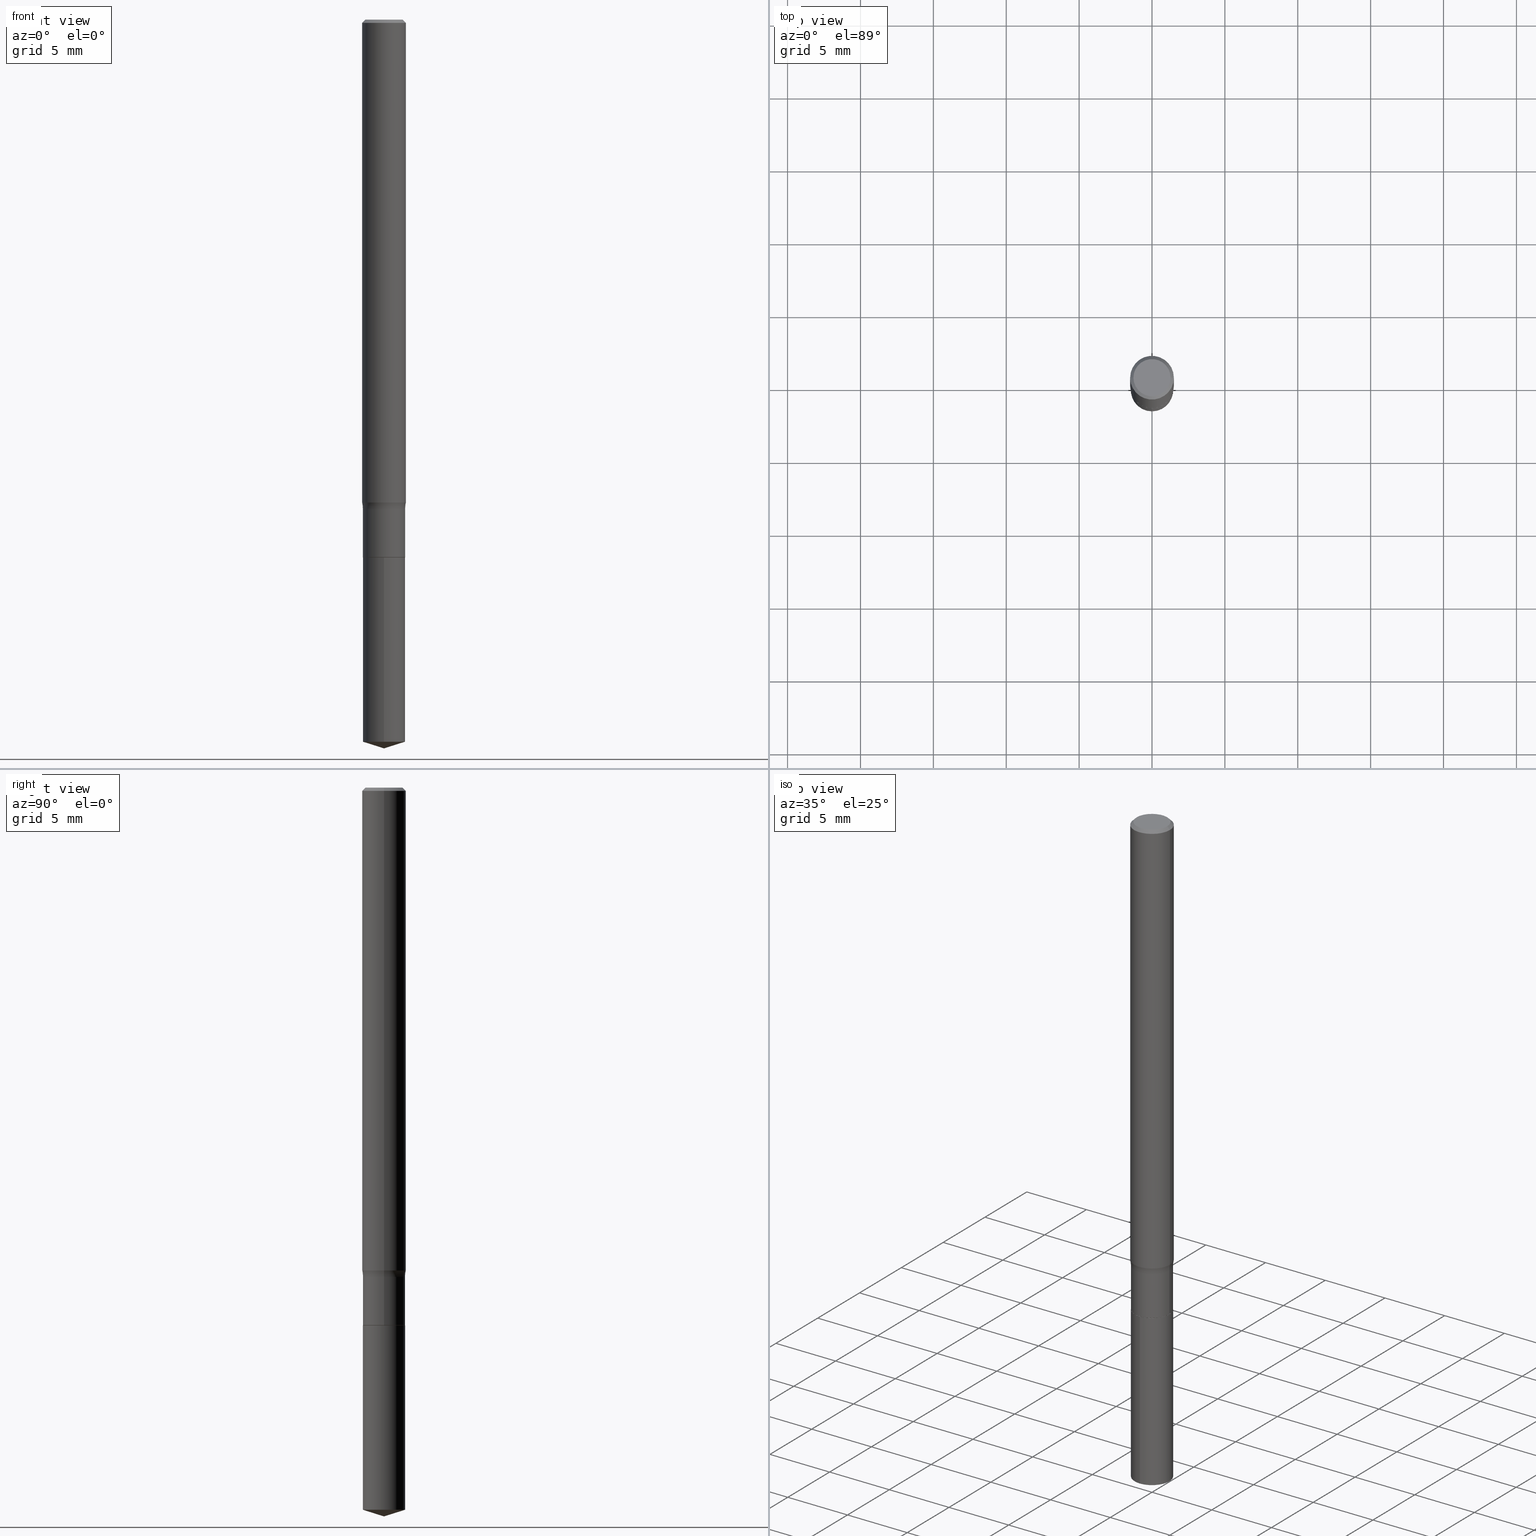
[diagram: canonical four-view strip — front | top / right | iso, engineering-drawing reading convention]
A machine part, canonical four-view strip (front | top / right | iso — engineering-drawing reading convention). The complete STEP part file that produces these views, byte-faithful:
ISO-10303-21;
HEADER;
FILE_DESCRIPTION (( 'STEP AP203' ),
    '1' );
FILE_NAME ('64512.STEP',
    '2024-04-19T15:42:57',
    ( '' ),
    ( '' ),
    'SwSTEP 2.0',
    'SolidWorks 2023',
    '' );
FILE_SCHEMA (( 'CONFIG_CONTROL_DESIGN' ));
ENDSEC;

DATA;
#1 = DIRECTION ( 'NONE',  ( 1.000000000000000000, -6.982962677686268288E-15, 4.883557194083113462E-29 ) ) ;
#2 = VERTEX_POINT ( 'NONE', #347 ) ;
#3 = DIRECTION ( 'NONE',  ( 2.445468806185136597E-29, -3.491481338843145583E-15, -1.000000000000000000 ) ) ;
#4 = UNCERTAINTY_MEASURE_WITH_UNIT (LENGTH_MEASURE( 1.000000000000000082E-05 ), #59, 'distance_accuracy_value', 'NONE');
#5 = PERSON_AND_ORGANIZATION_ROLE ( 'creator' ) ;
#6 = CARTESIAN_POINT ( 'NONE',  ( -0.1350999999999999701, -3.654049353269322401E-15, -1.321500000000000119 ) ) ;
#7 = DIRECTION ( 'NONE',  ( -2.445489378185241171E-29, 3.491451878568109799E-15, 1.000000000000000000 ) ) ;
#8 = ADVANCED_FACE ( 'NONE', ( #63 ), #428, .F. ) ;
#9 = PRODUCT ( '64512', '64512', '', ( #187 ) ) ;
#10 = FACE_OUTER_BOUND ( 'NONE', #116, .T. ) ;
#11 = DIRECTION ( 'NONE',  ( 2.438088387897960049E-29, -3.491481338843145188E-15, -1.000000000000000000 ) ) ;
#12 = FACE_OUTER_BOUND ( 'NONE', #307, .T. ) ;
#13 = CARTESIAN_POINT ( 'NONE',  ( 3.189302213101490858E-29, -4.553478307640284611E-15, -1.304168020886234070 ) ) ;
#14 = COORDINATED_UNIVERSAL_TIME_OFFSET ( 5, 0, .BEHIND. ) ;
#15 = AXIS2_PLACEMENT_3D ( 'NONE', #25, #80, #200 ) ;
#16 = AXIS2_PLACEMENT_3D ( 'NONE', #189, #236, #239 ) ;
#17 = CARTESIAN_POINT ( 'NONE',  ( 3.231687027373658286E-29, -4.613992589281217737E-15, -1.321500000000000119 ) ) ;
#18 = DIRECTION ( 'NONE',  ( 1.000000000000000000, -6.982962677686262766E-15, 0.000000000000000000 ) ) ;
#19 = ORIENTED_EDGE ( 'NONE', *, *, #426, .T. ) ;
#20 = CARTESIAN_POINT ( 'NONE',  ( -0.05904999999999999832, 3.814181501585706869E-16, -0.008857500000000056301 ) ) ;
#21 = LOCAL_TIME ( 11, 42, 57.00000000000000000, #204 ) ;
#22 = AXIS2_PLACEMENT_3D ( 'NONE', #484, #182, #303 ) ;
#23 = EDGE_LOOP ( 'NONE', ( #186, #487, #274, #45 ) ) ;
#24 = DIRECTION ( 'NONE',  ( -2.445468806185136597E-29, 3.491481338843145583E-15, 1.000000000000000000 ) ) ;
#25 = CARTESIAN_POINT ( 'NONE',  ( 4.769888437139961076E-29, -6.810107256515741243E-15, -1.950496439155010142 ) ) ;
#26 = ORIENTED_EDGE ( 'NONE', *, *, #226, .F. ) ;
#27 =( LENGTH_UNIT ( ) NAMED_UNIT ( * ) SI_UNIT ( $, .METRE. ) );
#28 = FACE_OUTER_BOUND ( 'NONE', #79, .T. ) ;
#29 = AXIS2_PLACEMENT_3D ( 'NONE', #224, #327, #132 ) ;
#30 = VECTOR ( 'NONE', #76, 39.37007874015748143 ) ;
#31 = DIRECTION ( 'NONE',  ( -2.445468806185136597E-29, 3.491481338843145583E-15, 1.000000000000000000 ) ) ;
#32 = DIRECTION ( 'NONE',  ( -2.445489378185241451E-29, 3.491451878568109799E-15, 1.000000000000000000 ) ) ;
#33 = ORIENTED_EDGE ( 'NONE', *, *, #207, .T. ) ;
#34 = EDGE_CURVE ( 'NONE', #490, #153, #95, .T. ) ;
#35 = ORIENTED_EDGE ( 'NONE', *, *, #88, .F. ) ;
#36 = CARTESIAN_POINT ( 'NONE',  ( 0.05659999999999999060, -5.467659776628364536E-15, -1.452799999999999869 ) ) ;
#37 = ORIENTED_EDGE ( 'NONE', *, *, #226, .T. ) ;
#38 = AXIS2_PLACEMENT_3D ( 'NONE', #70, #486, #454 ) ;
#39 = DIRECTION ( 'NONE',  ( 1.000000000000000000, -6.982962677686266711E-15, 4.876176775795936353E-29 ) ) ;
#40 = ORIENTED_EDGE ( 'NONE', *, *, #383, .T. ) ;
#41 = PERSON_AND_ORGANIZATION_ROLE ( 'creator' ) ;
#42 = DIRECTION ( 'NONE',  ( 6.982962677686265922E-15, 1.000000000000000000, -3.491451878568109799E-15 ) ) ;
#43 = EDGE_LOOP ( 'NONE', ( #227, #234, #276 ) ) ;
#44 = PRODUCT_DEFINITION_SHAPE ( 'NONE', 'NONE',  #261 ) ;
#45 = ORIENTED_EDGE ( 'NONE', *, *, #207, .F. ) ;
#46 = APPROVAL_ROLE ( '' ) ;
#47 = CARTESIAN_POINT ( 'NONE',  ( -3.987271688958501652E-16, -0.05710000000000506337, -1.452799999999999647 ) ) ;
#48 = AXIS2_PLACEMENT_3D ( 'NONE', #392, #290, #212 ) ;
#49 = DIRECTION ( 'NONE',  ( -2.445489378185241451E-29, 3.491451878568109799E-15, 1.000000000000000000 ) ) ;
#50 = CONICAL_SURFACE ( 'NONE', #330, 0.05904999999999999832, 0.7853981633974452814 ) ;
#51 = EDGE_CURVE ( 'NONE', #458, #457, #301, .T. ) ;
#52 = DIRECTION ( 'NONE',  ( -2.445468806185136877E-29, 3.491481338843145188E-15, 1.000000000000000000 ) ) ;
#53 = PERSON_AND_ORGANIZATION ( #444, #356 ) ;
#54 = DATE_TIME_ROLE ( 'creation_date' ) ;
#55 = COORDINATED_UNIVERSAL_TIME_OFFSET ( 5, 0, .BEHIND. ) ;
#56 = CARTESIAN_POINT ( 'NONE',  ( 8.782355238379090331E-48, -1.253887571509286098E-33, -3.591276738499609681E-19 ) ) ;
#57 = FACE_OUTER_BOUND ( 'NONE', #409, .T. ) ;
#58 = ADVANCED_FACE ( 'NONE', ( #390 ), #465, .F. ) ;
#59 =( CONVERSION_BASED_UNIT ( 'INCH', #298 ) LENGTH_UNIT ( ) NAMED_UNIT ( #65 ) );
#60 = DIRECTION ( 'NONE',  ( 0.7071067811865453523, -7.319954787623248157E-15, -0.7071067811865496822 ) ) ;
#61 = VECTOR ( 'NONE', #52, 39.37007874015748143 ) ;
#62 = ADVANCED_BREP_SHAPE_REPRESENTATION ( '64512', ( #482, #151, #473 ), #155 ) ;
#63 = FACE_OUTER_BOUND ( 'NONE', #483, .T. ) ;
#64 = PLANE ( 'NONE',  #185 ) ;
#65 = DIMENSIONAL_EXPONENTS ( 1.000000000000000000, 0.000000000000000000, 0.000000000000000000, 0.000000000000000000, 0.000000000000000000, 0.000000000000000000, 0.000000000000000000 ) ;
#66 = VERTEX_POINT ( 'NONE', #321 ) ;
#67 = DIRECTION ( 'NONE',  ( -2.438088387897960049E-29, 3.491481338843145188E-15, 1.000000000000000000 ) ) ;
#68 = VECTOR ( 'NONE', #172, 39.37007874015748143 ) ;
#69 = ORIENTED_EDGE ( 'NONE', *, *, #121, .T. ) ;
#70 = CARTESIAN_POINT ( 'NONE',  ( -9.146519342341580758E-28, 1.305857695538483617E-13, 37.40157874015748263 ) ) ;
#71 = VERTEX_POINT ( 'NONE', #385 ) ;
#72 = VERTEX_POINT ( 'NONE', #247 ) ;
#73 = CARTESIAN_POINT ( 'NONE',  ( 3.551554347222674167E-29, -5.070678348401900425E-15, -1.452299999999999924 ) ) ;
#74 = ORIENTED_EDGE ( 'NONE', *, *, #131, .F. ) ;
#75 = ORIENTED_EDGE ( 'NONE', *, *, #51, .F. ) ;
#76 = DIRECTION ( 'NONE',  ( 0.7071067811866138531, -2.468850131082952047E-15, 0.7071067811864811814 ) ) ;
#77 = CARTESIAN_POINT ( 'NONE',  ( 0.05905000000000014404, -4.965822253757659531E-15, -1.304168020886234070 ) ) ;
#78 = AXIS2_PLACEMENT_3D ( 'NONE', #376, #374, #312 ) ;
#79 = EDGE_LOOP ( 'NONE', ( #348, #341 ) ) ;
#80 = DIRECTION ( 'NONE',  ( -2.445489378185241451E-29, 3.491451878568109799E-15, 1.000000000000000000 ) ) ;
#81 = EDGE_CURVE ( 'NONE', #490, #334, #388, .T. ) ;
#82 = CARTESIAN_POINT ( 'NONE',  ( 3.231687027373658286E-29, -4.613992589281217737E-15, -1.321500000000000119 ) ) ;
#83 = ORIENTED_EDGE ( 'NONE', *, *, #223, .F. ) ;
#84 = DATE_AND_TIME ( #322, #228 ) ;
#85 = DIRECTION ( 'NONE',  ( 1.000000000000000000, -6.982962677686268288E-15, 4.883557194083113462E-29 ) ) ;
#86 = AXIS2_PLACEMENT_3D ( 'NONE', #319, #459, #42 ) ;
#87 = AXIS2_PLACEMENT_3D ( 'NONE', #109, #382, #39 ) ;
#88 = EDGE_CURVE ( 'NONE', #334, #108, #183, .T. ) ;
#89 = CARTESIAN_POINT ( 'NONE',  ( 0.05905000000000007465, -4.123439461173745750E-16, 2.879382386107504074E-30 ) ) ;
#90 = CALENDAR_DATE ( 2024, 19, 4 ) ;
#91 = ADVANCED_FACE ( 'NONE', ( #365 ), #50, .T. ) ;
#92 = SHAPE_DEFINITION_REPRESENTATION ( #44, #62 ) ;
#93 = APPROVAL_DATE_TIME ( #391, #104 ) ;
#94 = LINE ( 'NONE', #214, #156 ) ;
#95 = CIRCLE ( 'NONE', #15, 0.05709999999999999798 ) ;
#96 = CIRCLE ( 'NONE', #78, 0.05709999999999999798 ) ;
#97 = DIRECTION ( 'NONE',  ( -6.982962677686265133E-15, -1.000000000000000000, 4.784322230585399479E-15 ) ) ;
#98 = CC_DESIGN_APPROVAL ( #216, ( #231 ) ) ;
#99 = CARTESIAN_POINT ( 'NONE',  ( 3.189302213101490858E-29, -4.553478307640284611E-15, -1.304168020886234070 ) ) ;
#100 = LINE ( 'NONE', #262, #128 ) ;
#101 = ORIENTED_EDGE ( 'NONE', *, *, #160, .F. ) ;
#102 = CIRCLE ( 'NONE', #257, 0.05659999999999999060 ) ;
#103 = DIRECTION ( 'NONE',  ( -2.445468806185136597E-29, 3.491481338843145583E-15, 1.000000000000000000 ) ) ;
#104 = APPROVAL ( #377, 'UNSPECIFIED' ) ;
#105 = ORIENTED_EDGE ( 'NONE', *, *, #325, .F. ) ;
#106 = FACE_OUTER_BOUND ( 'NONE', #135, .T. ) ;
#107 = SECURITY_CLASSIFICATION_LEVEL ( 'unclassified' ) ;
#108 = VERTEX_POINT ( 'NONE', #258 ) ;
#109 = CARTESIAN_POINT ( 'NONE',  ( 0.000000000000000000, 0.000000000000000000, 0.000000000000000000 ) ) ;
#110 = CC_DESIGN_SECURITY_CLASSIFICATION ( #147, ( #231 ) ) ;
#111 = AXIS2_PLACEMENT_3D ( 'NONE', #430, #24, #218 ) ;
#112 = AXIS2_PLACEMENT_3D ( 'NONE', #82, #254, #1 ) ;
#113 = EDGE_LOOP ( 'NONE', ( #171, #442, #396, #485 ) ) ;
#114 = CARTESIAN_POINT ( 'NONE',  ( 3.231687027373658286E-29, -4.613992589281217737E-15, -1.321500000000000119 ) ) ;
#115 = CARTESIAN_POINT ( 'NONE',  ( 4.813886066954143209E-29, -6.873008622736468831E-15, -1.968500000000000139 ) ) ;
#116 = EDGE_LOOP ( 'NONE', ( #130, #297 ) ) ;
#117 = CYLINDRICAL_SURFACE ( 'NONE', #311, 0.05709999999999999798 ) ;
#118 = VECTOR ( 'NONE', #7, 39.37007874015748143 ) ;
#119 = CIRCLE ( 'NONE', #111, 0.05904999999999999832 ) ;
#120 = APPROVAL ( #125, 'UNSPECIFIED' ) ;
#121 = EDGE_CURVE ( 'NONE', #283, #72, #102, .T. ) ;
#122 = DIRECTION ( 'NONE',  ( 7.105427357601001859E-15, 1.000000000000000000, -3.491481338843145583E-15 ) ) ;
#123 = EDGE_CURVE ( 'NONE', #386, #66, #395, .T. ) ;
#124 = VECTOR ( 'NONE', #225, 39.37007874015748143 ) ;
#125 = APPROVAL_STATUS ( 'not_yet_approved' ) ;
#126 =( NAMED_UNIT ( * ) SI_UNIT ( $, .STERADIAN. ) SOLID_ANGLE_UNIT ( ) );
#127 = PRODUCT_RELATED_PRODUCT_CATEGORY ( 'detail', '', ( #9 ) ) ;
#128 = VECTOR ( 'NONE', #60, 39.37007874015748143 ) ;
#129 = APPROVAL_PERSON_ORGANIZATION ( #270, #104, #46 ) ;
#130 = ORIENTED_EDGE ( 'NONE', *, *, #88, .T. ) ;
#131 = EDGE_CURVE ( 'NONE', #66, #2, #193, .T. ) ;
#132 = DIRECTION ( 'NONE',  ( 1.000000000000000000, -6.982962677686266711E-15, 4.876176775795936353E-29 ) ) ;
#133 = EDGE_CURVE ( 'NONE', #71, #415, #478, .T. ) ;
#134 = DIRECTION ( 'NONE',  ( -2.445489378185241451E-29, 3.491451878568109799E-15, 1.000000000000000000 ) ) ;
#135 = EDGE_LOOP ( 'NONE', ( #217, #373, #279, #292 ) ) ;
#136 = CC_DESIGN_DATE_AND_TIME_ASSIGNMENT ( #84, #54, ( #261 ) ) ;
#137 = CARTESIAN_POINT ( 'NONE',  ( 4.057199021190526412E-16, 0.05709999999999492565, -1.452800000000000091 ) ) ;
#138 = CIRCLE ( 'NONE', #288, 0.05709999999999998410 ) ;
#139 = CC_DESIGN_DATE_AND_TIME_ASSIGNMENT ( #170, #402, ( #147 ) ) ;
#140 = ORIENTED_EDGE ( 'NONE', *, *, #466, .F. ) ;
#141 = DIRECTION ( 'NONE',  ( -2.445468806185136597E-29, 3.491481338843145583E-15, 1.000000000000000000 ) ) ;
#142 = ORIENTED_EDGE ( 'NONE', *, *, #335, .T. ) ;
#143 = APPLICATION_PROTOCOL_DEFINITION ( 'international standard', 'config_control_design', 1994, #237 ) ;
#144 = DIRECTION ( 'NONE',  ( 1.000000000000000000, -6.982962677686265922E-15, 4.876176775795935793E-29 ) ) ;
#145 = ORIENTED_EDGE ( 'NONE', *, *, #34, .T. ) ;
#146 = CYLINDRICAL_SURFACE ( 'NONE', #472, 0.05709999999999999798 ) ;
#147 = SECURITY_CLASSIFICATION ( '', '', #107 ) ;
#148 = ORIENTED_EDGE ( 'NONE', *, *, #309, .F. ) ;
#149 = CYLINDRICAL_SURFACE ( 'NONE', #87, 0.05905000000000007465 ) ;
#150 = ORIENTED_EDGE ( 'NONE', *, *, #259, .F. ) ;
#151 = MANIFOLD_SOLID_BREP ( 'Body-Move/Copy2[2]', #240 ) ;
#152 = DIRECTION ( 'NONE',  ( 1.000000000000000000, -6.982962677686269077E-15, 0.000000000000000000 ) ) ;
#153 = VERTEX_POINT ( 'NONE', #222 ) ;
#154 = FACE_OUTER_BOUND ( 'NONE', #243, .T. ) ;
#155 =( GEOMETRIC_REPRESENTATION_CONTEXT ( 3 ) GLOBAL_UNCERTAINTY_ASSIGNED_CONTEXT ( ( #4 ) ) GLOBAL_UNIT_ASSIGNED_CONTEXT ( ( #59, #468, #126 ) ) REPRESENTATION_CONTEXT ( 'NONE', 'WORKASPACE' ) );
#156 = VECTOR ( 'NONE', #326, 39.37007874015748854 ) ;
#157 = CARTESIAN_POINT ( 'NONE',  ( -0.05905000000000014404, -4.133902822173944329E-15, -1.304168020886234070 ) ) ;
#158 = ORIENTED_EDGE ( 'NONE', *, *, #168, .T. ) ;
#159 = PLANE ( 'NONE',  #86 ) ;
#160 = EDGE_CURVE ( 'NONE', #71, #173, #213, .T. ) ;
#161 = DIRECTION ( 'NONE',  ( 1.000000000000000000, -6.982962677686266711E-15, 4.876140833081945105E-29 ) ) ;
#162 = APPROVAL_STATUS ( 'not_yet_approved' ) ;
#163 = CYLINDRICAL_SURFACE ( 'NONE', #48, 0.05709999999999997716 ) ;
#164 = CALENDAR_DATE ( 2024, 19, 4 ) ;
#165 = CONICAL_SURFACE ( 'NONE', #368, 0.05659999999999999060, 0.7853981633975420928 ) ;
#166 = ORIENTED_EDGE ( 'NONE', *, *, #464, .F. ) ;
#167 = EDGE_LOOP ( 'NONE', ( #199, #37, #352, #190 ) ) ;
#168 = EDGE_CURVE ( 'NONE', #457, #415, #328, .T. ) ;
#169 = CARTESIAN_POINT ( 'NONE',  ( 0.05019250000000000100, -3.901918742401799179E-16, -3.591276738473711219E-19 ) ) ;
#170 = DATE_AND_TIME ( #215, #192 ) ;
#171 = ORIENTED_EDGE ( 'NONE', *, *, #440, .F. ) ;
#172 = DIRECTION ( 'NONE',  ( -2.445468806185136877E-29, 3.491481338843145188E-15, 1.000000000000000000 ) ) ;
#173 = VERTEX_POINT ( 'NONE', #169 ) ;
#174 = AXIS2_PLACEMENT_3D ( 'NONE', #99, #260, #401 ) ;
#175 = DIRECTION ( 'NONE',  ( 2.445468806185136597E-29, -3.491481338843145583E-15, -1.000000000000000000 ) ) ;
#176 = ORIENTED_EDGE ( 'NONE', *, *, #241, .T. ) ;
#177 = FACE_OUTER_BOUND ( 'NONE', #113, .T. ) ;
#178 = APPLICATION_CONTEXT ( 'configuration controlled 3d designs of mechanical parts and assemblies' ) ;
#179 = ADVANCED_FACE ( 'NONE', ( #57 ), #355, .T. ) ;
#180 = CARTESIAN_POINT ( 'NONE',  ( 3.552777081625765848E-29, -5.072424089071321929E-15, -1.452799999999999869 ) ) ;
#181 = CARTESIAN_POINT ( 'NONE',  ( 3.231687027373658286E-29, -4.613992589281217737E-15, -1.321500000000000119 ) ) ;
#182 = DIRECTION ( 'NONE',  ( -6.982962677686266711E-15, -1.000000000000000000, 3.491481338843145583E-15 ) ) ;
#183 = CIRCLE ( 'NONE', #317, 0.05709999999999999798 ) ;
#184 = VECTOR ( 'NONE', #336, 39.37007874015748143 ) ;
#185 = AXIS2_PLACEMENT_3D ( 'NONE', #445, #67, #144 ) ;
#186 = ORIENTED_EDGE ( 'NONE', *, *, #168, .F. ) ;
#187 = MECHANICAL_CONTEXT ( 'NONE', #178, 'mechanical' ) ;
#188 = CARTESIAN_POINT ( 'NONE',  ( -3.987271688958501652E-16, -0.05710000000000506337, -1.452799999999999647 ) ) ;
#189 = CARTESIAN_POINT ( 'NONE',  ( 2.166073995078498372E-31, -3.092579595880335814E-17, -0.008857500000000056301 ) ) ;
#190 = ORIENTED_EDGE ( 'NONE', *, *, #133, .F. ) ;
#191 = DIRECTION ( 'NONE',  ( -0.7071067811866138531, 7.493145998870593974E-15, 0.7071067811864811814 ) ) ;
#192 = LOCAL_TIME ( 11, 42, 57.00000000000000000, #55 ) ;
#193 = CIRCLE ( 'NONE', #362, 0.05709999999999997022 ) ;
#194 = ADVANCED_FACE ( 'NONE', ( #439 ), #165, .T. ) ;
#195 = ORIENTED_EDGE ( 'NONE', *, *, #325, .T. ) ;
#196 = CARTESIAN_POINT ( 'NONE',  ( 4.769888437139961076E-29, -6.810107256515741243E-15, -1.950496439155010142 ) ) ;
#197 = FACE_OUTER_BOUND ( 'NONE', #281, .T. ) ;
#198 = DIRECTION ( 'NONE',  ( -1.000000000000000000, 6.982962677686266711E-15, 0.000000000000000000 ) ) ;
#199 = ORIENTED_EDGE ( 'NONE', *, *, #426, .F. ) ;
#200 = DIRECTION ( 'NONE',  ( -6.982962677686265133E-15, -1.000000000000000000, 4.784322230585399479E-15 ) ) ;
#201 = VECTOR ( 'NONE', #357, 39.37007874015748143 ) ;
#202 = AXIS2_PLACEMENT_3D ( 'NONE', #114, #233, #340 ) ;
#203 = LOCAL_TIME ( 11, 42, 57.00000000000000000, #289 ) ;
#204 = COORDINATED_UNIVERSAL_TIME_OFFSET ( 5, 0, .BEHIND. ) ;
#205 = CARTESIAN_POINT ( 'NONE',  ( 3.552777081625765848E-29, -5.072424089071321929E-15, -1.452799999999999869 ) ) ;
#206 = DIRECTION ( 'NONE',  ( -2.445468806185136597E-29, 3.491481338843145583E-15, 1.000000000000000000 ) ) ;
#207 = EDGE_CURVE ( 'NONE', #415, #480, #119, .T. ) ;
#208 = COORDINATED_UNIVERSAL_TIME_OFFSET ( 5, 0, .BEHIND. ) ;
#209 = DIRECTION ( 'NONE',  ( -6.982962677686265133E-15, -1.000000000000000000, 4.784322230585399479E-15 ) ) ;
#210 = CARTESIAN_POINT ( 'NONE',  ( 0.05904999999999999832, -4.432697420761773785E-16, -0.008857500000000056301 ) ) ;
#211 = APPROVAL_DATE_TIME ( #315, #216 ) ;
#212 = DIRECTION ( 'NONE',  ( 1.000000000000000000, -6.982962677686266711E-15, 4.876176775795935793E-29 ) ) ;
#213 = CIRCLE ( 'NONE', #375, 0.05019250000000000100 ) ;
#214 = CARTESIAN_POINT ( 'NONE',  ( 4.813946365105101460E-29, -6.872923022961324589E-15, -1.968500000000000139 ) ) ;
#215 = CALENDAR_DATE ( 2024, 19, 4 ) ;
#216 = APPROVAL ( #162, 'UNSPECIFIED' ) ;
#217 = ORIENTED_EDGE ( 'NONE', *, *, #255, .F. ) ;
#218 = DIRECTION ( 'NONE',  ( 1.000000000000000000, -6.982962677686266711E-15, 0.000000000000000000 ) ) ;
#219 = DIRECTION ( 'NONE',  ( -1.000000000000000000, 6.982962677686266711E-15, 0.000000000000000000 ) ) ;
#220 = EDGE_CURVE ( 'NONE', #268, #153, #94, .T. ) ;
#221 = CIRCLE ( 'NONE', #491, 0.05709999999999998410 ) ;
#222 = CARTESIAN_POINT ( 'NONE',  ( 4.057199021190646713E-16, 0.05709999999999316317, -1.950496439155010586 ) ) ;
#223 = EDGE_CURVE ( 'NONE', #457, #458, #242, .T. ) ;
#224 = CARTESIAN_POINT ( 'NONE',  ( 0.000000000000000000, 0.000000000000000000, 0.000000000000000000 ) ) ;
#225 = DIRECTION ( 'NONE',  ( -2.445489378185241171E-29, 3.491451878568109799E-15, 1.000000000000000000 ) ) ;
#226 = EDGE_CURVE ( 'NONE', #173, #480, #100, .T. ) ;
#227 = ORIENTED_EDGE ( 'NONE', *, *, #241, .F. ) ;
#228 = LOCAL_TIME ( 11, 42, 57.00000000000000000, #208 ) ;
#229 = CARTESIAN_POINT ( 'NONE',  ( -0.05709999999999998410, -4.436615566722541594E-15, -1.452299999999999924 ) ) ;
#230 = CIRCLE ( 'NONE', #22, 0.07799999999999999989 ) ;
#231 = PRODUCT_DEFINITION_FORMATION_WITH_SPECIFIED_SOURCE ( 'ANY', '', #9, .NOT_KNOWN. ) ;
#232 = CC_DESIGN_PERSON_AND_ORGANIZATION_ASSIGNMENT ( #387, #447, ( #231 ) ) ;
#233 = DIRECTION ( 'NONE',  ( -2.445468806185136597E-29, 3.491481338843145583E-15, 1.000000000000000000 ) ) ;
#234 = ORIENTED_EDGE ( 'NONE', *, *, #220, .T. ) ;
#235 = ADVANCED_FACE ( 'NONE', ( #177 ), #308, .T. ) ;
#236 = DIRECTION ( 'NONE',  ( -2.445468806185136597E-29, 3.491481338843145583E-15, 1.000000000000000000 ) ) ;
#237 = APPLICATION_CONTEXT ( 'configuration controlled 3d designs of mechanical parts and assemblies' ) ;
#238 = ORIENTED_EDGE ( 'NONE', *, *, #345, .T. ) ;
#239 = DIRECTION ( 'NONE',  ( 1.000000000000000000, -6.982962677686266711E-15, 0.000000000000000000 ) ) ;
#240 = CLOSED_SHELL ( 'NONE', ( #437, #91, #489, #424, #399, #235, #8, #267, #452, #58, #372, #194 ) ) ;
#241 = EDGE_CURVE ( 'NONE', #268, #490, #346, .T. ) ;
#242 = CIRCLE ( 'NONE', #174, 0.05905000000000015098 ) ;
#243 = EDGE_LOOP ( 'NONE', ( #83, #379, #40, #148 ) ) ;
#244 = DIRECTION ( 'NONE',  ( -1.000000000000000000, 6.982962677686265922E-15, -4.876176775795935793E-29 ) ) ;
#245 = PERSON_AND_ORGANIZATION ( #444, #356 ) ;
#246 = CARTESIAN_POINT ( 'NONE',  ( 8.782355238379090331E-48, -1.253887571509286098E-33, -3.591276738499609681E-19 ) ) ;
#247 = CARTESIAN_POINT ( 'NONE',  ( -0.05659999999999999060, -4.667607673456994139E-15, -1.452799999999999869 ) ) ;
#248 = EDGE_CURVE ( 'NONE', #480, #415, #302, .T. ) ;
#249 = FACE_OUTER_BOUND ( 'NONE', #265, .T. ) ;
#250 = DIRECTION ( 'NONE',  ( 1.000000000000000000, -6.982962677686271444E-15, 0.000000000000000000 ) ) ;
#251 = CC_DESIGN_PERSON_AND_ORGANIZATION_ASSIGNMENT ( #467, #369, ( #147 ) ) ;
#252 = CALENDAR_DATE ( 2024, 19, 4 ) ;
#253 = CARTESIAN_POINT ( 'NONE',  ( 0.05709999999999998410, -5.469405517297786040E-15, -1.452299999999999924 ) ) ;
#254 = DIRECTION ( 'NONE',  ( -2.445468806185136597E-29, 3.491481338843145583E-15, 1.000000000000000000 ) ) ;
#255 = EDGE_CURVE ( 'NONE', #153, #108, #449, .T. ) ;
#256 = DIRECTION ( 'NONE',  ( -2.445468806185136597E-29, 3.491481338843145583E-15, 1.000000000000000000 ) ) ;
#257 = AXIS2_PLACEMENT_3D ( 'NONE', #371, #370, #431 ) ;
#258 = CARTESIAN_POINT ( 'NONE',  ( 4.057199021190649179E-16, 0.05709999999999492565, -1.452800000000000091 ) ) ;
#259 = EDGE_CURVE ( 'NONE', #153, #490, #432, .T. ) ;
#260 = DIRECTION ( 'NONE',  ( -2.445468806185136597E-29, 3.491481338843145583E-15, 1.000000000000000000 ) ) ;
#261 = PRODUCT_DEFINITION ( 'UNKNOWN', '', #231, #337 ) ;
#262 = CARTESIAN_POINT ( 'NONE',  ( 0.05904999999999999832, -4.360382027272122633E-16, -0.008857500000000056301 ) ) ;
#263 = EDGE_LOOP ( 'NONE', ( #105, #142, #238, #314 ) ) ;
#264 = CARTESIAN_POINT ( 'NONE',  ( -0.05905000000000007465, 4.195754854663396902E-16, -2.904631170795525395E-30 ) ) ;
#265 = EDGE_LOOP ( 'NONE', ( #145, #381, #35, #436 ) ) ;
#266 = DIRECTION ( 'NONE',  ( 1.000000000000000000, -6.982962677686269077E-15, 0.000000000000000000 ) ) ;
#267 = ADVANCED_FACE ( 'NONE', ( #410 ), #149, .T. ) ;
#268 = VERTEX_POINT ( 'NONE', #378 ) ;
#269 = VERTEX_POINT ( 'NONE', #229 ) ;
#270 = PERSON_AND_ORGANIZATION ( #444, #356 ) ;
#271 = DIRECTION ( 'NONE',  ( -2.445468806185136597E-29, 3.491481338843145583E-15, 1.000000000000000000 ) ) ;
#272 = ORIENTED_EDGE ( 'NONE', *, *, #133, .T. ) ;
#273 = AXIS2_PLACEMENT_3D ( 'NONE', #205, #420, #152 ) ;
#274 = ORIENTED_EDGE ( 'NONE', *, *, #466, .T. ) ;
#275 = LINE ( 'NONE', #443, #479 ) ;
#276 = ORIENTED_EDGE ( 'NONE', *, *, #34, .F. ) ;
#277 = PERSON_AND_ORGANIZATION_ROLE ( 'design_owner' ) ;
#278 = CARTESIAN_POINT ( 'NONE',  ( 3.552777081625765848E-29, -5.072424089071321929E-15, -1.452799999999999869 ) ) ;
#279 = ORIENTED_EDGE ( 'NONE', *, *, #81, .T. ) ;
#280 = CIRCLE ( 'NONE', #398, 0.05659999999999999060 ) ;
#281 = EDGE_LOOP ( 'NONE', ( #26, #101, #272, #33 ) ) ;
#282 = EDGE_CURVE ( 'NONE', #108, #334, #96, .T. ) ;
#283 = VERTEX_POINT ( 'NONE', #36 ) ;
#284 = CARTESIAN_POINT ( 'NONE',  ( 3.552777081625765848E-29, -5.072424089071321929E-15, -1.452799999999999869 ) ) ;
#285 = CC_DESIGN_PERSON_AND_ORGANIZATION_ASSIGNMENT ( #245, #41, ( #231 ) ) ;
#286 = DIRECTION ( 'NONE',  ( -1.000000000000000000, 7.105427357600997914E-15, 0.000000000000000000 ) ) ;
#287 = CC_DESIGN_APPROVAL ( #104, ( #261 ) ) ;
#288 = AXIS2_PLACEMENT_3D ( 'NONE', #455, #271, #380 ) ;
#289 = COORDINATED_UNIVERSAL_TIME_OFFSET ( 5, 0, .BEHIND. ) ;
#290 = DIRECTION ( 'NONE',  ( -2.445468806185136597E-29, 3.491481338843145583E-15, 1.000000000000000000 ) ) ;
#291 = DIRECTION ( 'NONE',  ( 1.000000000000000000, -6.982962677686269077E-15, 0.000000000000000000 ) ) ;
#292 = ORIENTED_EDGE ( 'NONE', *, *, #282, .F. ) ;
#293 = ORIENTED_EDGE ( 'NONE', *, *, #309, .T. ) ;
#294 = EDGE_CURVE ( 'NONE', #386, #269, #221, .T. ) ;
#295 = CONICAL_SURFACE ( 'NONE', #413, 0.05904999999999999832, 0.7853981633974452814 ) ;
#296 = DIRECTION ( 'NONE',  ( -0.7071067811865453523, 2.468850131082234184E-15, -0.7071067811865496822 ) ) ;
#297 = ORIENTED_EDGE ( 'NONE', *, *, #282, .T. ) ;
#298 = LENGTH_MEASURE_WITH_UNIT ( LENGTH_MEASURE( 0.02539999999999999897 ), #27 );
#299 = CARTESIAN_POINT ( 'NONE',  ( 2.166073995078498372E-31, -3.092579595880335814E-17, -0.008857500000000056301 ) ) ;
#300 = DIRECTION ( 'NONE',  ( 1.000000000000000000, -6.982962677686266711E-15, 4.876140833081945105E-29 ) ) ;
#301 = CIRCLE ( 'NONE', #421, 0.05905000000000015098 ) ;
#302 = CIRCLE ( 'NONE', #16, 0.05904999999999999832 ) ;
#303 = DIRECTION ( 'NONE',  ( 1.000000000000000000, -6.982962677686270655E-15, 0.000000000000000000 ) ) ;
#304 = ORIENTED_EDGE ( 'NONE', *, *, #294, .F. ) ;
#305 = DIRECTION ( 'NONE',  ( 0.000000000000000000, 0.000000000000000000, 1.000000000000000000 ) ) ;
#306 = LINE ( 'NONE', #417, #30 ) ;
#307 = EDGE_LOOP ( 'NONE', ( #69, #195, #304, #438 ) ) ;
#308 = CYLINDRICAL_SURFACE ( 'NONE', #453, 0.05709999999999997716 ) ;
#309 = EDGE_CURVE ( 'NONE', #458, #66, #230, .T. ) ;
#310 = DIRECTION ( 'NONE',  ( -2.445489378185241451E-29, 3.491451878568109799E-15, 1.000000000000000000 ) ) ;
#311 = AXIS2_PLACEMENT_3D ( 'NONE', #284, #49, #209 ) ;
#312 = DIRECTION ( 'NONE',  ( -6.982962677686265133E-15, -1.000000000000000000, 4.784322230585399479E-15 ) ) ;
#313 = LINE ( 'NONE', #384, #201 ) ;
#314 = ORIENTED_EDGE ( 'NONE', *, *, #316, .F. ) ;
#315 = DATE_AND_TIME ( #90, #203 ) ;
#316 = EDGE_CURVE ( 'NONE', #269, #386, #138, .T. ) ;
#317 = AXIS2_PLACEMENT_3D ( 'NONE', #469, #134, #97 ) ;
#318 = CIRCLE ( 'NONE', #404, 0.05019250000000000100 ) ;
#319 = CARTESIAN_POINT ( 'NONE',  ( 3.552777081625765848E-29, -5.072424089071321929E-15, -1.452799999999999869 ) ) ;
#320 = DIRECTION ( 'NONE',  ( -2.445468806185136597E-29, 3.491481338843145583E-15, 1.000000000000000000 ) ) ;
#321 = CARTESIAN_POINT ( 'NONE',  ( 0.05709999999999997022, -5.012719758177102563E-15, -1.321500000000000119 ) ) ;
#322 = CALENDAR_DATE ( 2024, 19, 4 ) ;
#323 = DIRECTION ( 'NONE',  ( -2.445468806185136597E-29, 3.491481338843145583E-15, 1.000000000000000000 ) ) ;
#324 = DATE_AND_TIME ( #164, #354 ) ;
#325 = EDGE_CURVE ( 'NONE', #72, #269, #275, .T. ) ;
#326 = DIRECTION ( 'NONE',  ( 6.776566513254254982E-15, 0.9537169507482283759, 0.3007057995042682341 ) ) ;
#327 = DIRECTION ( 'NONE',  ( -2.445468806185136597E-29, 3.491481338843145583E-15, 1.000000000000000000 ) ) ;
#328 = LINE ( 'NONE', #264, #68 ) ;
#329 = TOROIDAL_SURFACE ( 'NONE', #112, 0.1350999999999999701, 0.07799999999999999989 ) ;
#330 = AXIS2_PLACEMENT_3D ( 'NONE', #299, #175, #219 ) ;
#331 = CC_DESIGN_APPROVAL ( #120, ( #147 ) ) ;
#332 = DIRECTION ( 'NONE',  ( -2.445489378185241451E-29, 3.491451878568109799E-15, 1.000000000000000000 ) ) ;
#333 = CARTESIAN_POINT ( 'NONE',  ( -9.146519342341580758E-28, 1.305857695538483617E-13, 37.40157874015748263 ) ) ;
#334 = VERTEX_POINT ( 'NONE', #188 ) ;
#335 = EDGE_CURVE ( 'NONE', #72, #283, #280, .T. ) ;
#336 = DIRECTION ( 'NONE',  ( -6.659769872151629722E-15, -0.9537169507482263775, 0.3007057995042748955 ) ) ;
#337 = DESIGN_CONTEXT ( 'detailed design', #237, 'design' ) ;
#338 = EDGE_LOOP ( 'NONE', ( #411, #400, #74, #364 ) ) ;
#339 = PERSON_AND_ORGANIZATION ( #444, #356 ) ;
#340 = DIRECTION ( 'NONE',  ( 1.000000000000000000, -6.982962677686262766E-15, 0.000000000000000000 ) ) ;
#341 = ORIENTED_EDGE ( 'NONE', *, *, #335, .F. ) ;
#342 = ADVANCED_FACE ( 'NONE', ( #492 ), #412, .T. ) ;
#343 = DIRECTION ( 'NONE',  ( 1.000000000000000000, -6.982962677686261189E-15, 0.000000000000000000 ) ) ;
#344 = ORIENTED_EDGE ( 'NONE', *, *, #160, .T. ) ;
#345 = EDGE_CURVE ( 'NONE', #283, #386, #306, .T. ) ;
#346 = LINE ( 'NONE', #115, #184 ) ;
#347 = CARTESIAN_POINT ( 'NONE',  ( -0.05709999999999997022, -4.436615566722541594E-15, -1.321500000000000119 ) ) ;
#348 = ORIENTED_EDGE ( 'NONE', *, *, #121, .F. ) ;
#349 = DIRECTION ( 'NONE',  ( 1.000000000000000000, 0.000000000000000000, 0.000000000000000000 ) ) ;
#350 = CARTESIAN_POINT ( 'NONE',  ( 3.552777081625765848E-29, -5.072424089071321929E-15, -1.452799999999999869 ) ) ;
#351 = CARTESIAN_POINT ( 'NONE',  ( 2.166073995078498372E-31, -3.092579595880335814E-17, -0.008857500000000056301 ) ) ;
#352 = ORIENTED_EDGE ( 'NONE', *, *, #248, .T. ) ;
#353 = CARTESIAN_POINT ( 'NONE',  ( -0.05904999999999999832, -1.872626566333202982E-15, -0.008857500000000056301 ) ) ;
#354 = LOCAL_TIME ( 11, 42, 57.00000000000000000, #14 ) ;
#355 = CONICAL_SURFACE ( 'NONE', #441, 124.8659371009145644, 1.265363707695890572 ) ;
#356 = ORGANIZATION ( 'UNSPECIFIED', 'UNSPECIFIED', '' ) ;
#357 = DIRECTION ( 'NONE',  ( -2.445468806185136877E-29, 3.491481338843145188E-15, 1.000000000000000000 ) ) ;
#358 = ADVANCED_FACE ( 'NONE', ( #106 ), #146, .T. ) ;
#359 = PERSON_AND_ORGANIZATION ( #444, #356 ) ;
#360 = APPROVAL_ROLE ( '' ) ;
#361 = PERSON_AND_ORGANIZATION ( #444, #356 ) ;
#362 = AXIS2_PLACEMENT_3D ( 'NONE', #17, #403, #18 ) ;
#363 = CARTESIAN_POINT ( 'NONE',  ( 0.05709999999999997716, -3.987271688958856639E-16, 2.784296938979478177E-30 ) ) ;
#364 = ORIENTED_EDGE ( 'NONE', *, *, #123, .F. ) ;
#365 = FACE_OUTER_BOUND ( 'NONE', #167, .T. ) ;
#366 = APPROVAL_PERSON_ORGANIZATION ( #359, #216, #460 ) ;
#367 = CLOSED_SHELL ( 'NONE', ( #389, #342, #179, #358, #446 ) ) ;
#368 = AXIS2_PLACEMENT_3D ( 'NONE', #180, #406, #291 ) ;
#369 = PERSON_AND_ORGANIZATION_ROLE ( 'classification_officer' ) ;
#370 = DIRECTION ( 'NONE',  ( -2.445468806185136597E-29, 3.491481338843145583E-15, 1.000000000000000000 ) ) ;
#371 = CARTESIAN_POINT ( 'NONE',  ( 3.552777081625765848E-29, -5.072424089071321929E-15, -1.452799999999999869 ) ) ;
#372 = ADVANCED_FACE ( 'NONE', ( #28 ), #64, .F. ) ;
#373 = ORIENTED_EDGE ( 'NONE', *, *, #259, .T. ) ;
#374 = DIRECTION ( 'NONE',  ( -2.445489378185241451E-29, 3.491451878568109799E-15, 1.000000000000000000 ) ) ;
#375 = AXIS2_PLACEMENT_3D ( 'NONE', #56, #256, #300 ) ;
#376 = CARTESIAN_POINT ( 'NONE',  ( 3.552777081625765848E-29, -5.072424089071321929E-15, -1.452799999999999869 ) ) ;
#377 = APPROVAL_STATUS ( 'not_yet_approved' ) ;
#378 = CARTESIAN_POINT ( 'NONE',  ( 4.813945840957648273E-29, -6.872923022961324589E-15, -1.968500000000000139 ) ) ;
#379 = ORIENTED_EDGE ( 'NONE', *, *, #464, .T. ) ;
#380 = DIRECTION ( 'NONE',  ( 1.000000000000000000, -6.982962677686261189E-15, 0.000000000000000000 ) ) ;
#381 = ORIENTED_EDGE ( 'NONE', *, *, #255, .T. ) ;
#382 = DIRECTION ( 'NONE',  ( -2.445468806185136597E-29, 3.491481338843145583E-15, 1.000000000000000000 ) ) ;
#383 = EDGE_CURVE ( 'NONE', #2, #66, #462, .T. ) ;
#384 = CARTESIAN_POINT ( 'NONE',  ( -0.05709999999999997716, 4.057199021190170439E-16, -2.808711936535549889E-30 ) ) ;
#385 = CARTESIAN_POINT ( 'NONE',  ( -0.05019250000000000100, 3.659552521791693345E-16, -3.591276738524661214E-19 ) ) ;
#386 = VERTEX_POINT ( 'NONE', #253 ) ;
#387 = PERSON_AND_ORGANIZATION ( #444, #356 ) ;
#388 = LINE ( 'NONE', #47, #118 ) ;
#389 = ADVANCED_FACE ( 'NONE', ( #249 ), #117, .T. ) ;
#390 = FACE_OUTER_BOUND ( 'NONE', #456, .T. ) ;
#391 = DATE_AND_TIME ( #252, #21 ) ;
#392 = CARTESIAN_POINT ( 'NONE',  ( 0.000000000000000000, 0.000000000000000000, 0.000000000000000000 ) ) ;
#393 = CC_DESIGN_PERSON_AND_ORGANIZATION_ASSIGNMENT ( #339, #277, ( #9 ) ) ;
#394 = ORIENTED_EDGE ( 'NONE', *, *, #131, .T. ) ;
#395 = LINE ( 'NONE', #363, #429 ) ;
#396 = ORIENTED_EDGE ( 'NONE', *, *, #123, .T. ) ;
#397 = AXIS2_PLACEMENT_3D ( 'NONE', #423, #11, #244 ) ;
#398 = AXIS2_PLACEMENT_3D ( 'NONE', #278, #141, #266 ) ;
#399 = ADVANCED_FACE ( 'NONE', ( #425 ), #163, .T. ) ;
#400 = ORIENTED_EDGE ( 'NONE', *, *, #440, .T. ) ;
#401 = DIRECTION ( 'NONE',  ( 1.000000000000000000, -6.982962677686271444E-15, 0.000000000000000000 ) ) ;
#402 = DATE_TIME_ROLE ( 'classification_date' ) ;
#403 = DIRECTION ( 'NONE',  ( -2.445468806185136597E-29, 3.491481338843145583E-15, 1.000000000000000000 ) ) ;
#404 = AXIS2_PLACEMENT_3D ( 'NONE', #246, #320, #161 ) ;
#405 = AXIS2_PLACEMENT_3D ( 'NONE', #196, #32, #481 ) ;
#406 = DIRECTION ( 'NONE',  ( -2.445468806185136597E-29, 3.491481338843145583E-15, 1.000000000000000000 ) ) ;
#407 = FACE_OUTER_BOUND ( 'NONE', #471, .T. ) ;
#408 = DIRECTION ( 'NONE',  ( -6.982962677686265133E-15, -1.000000000000000000, 4.784322230585399479E-15 ) ) ;
#409 = EDGE_LOOP ( 'NONE', ( #450, #176, #150 ) ) ;
#410 = FACE_OUTER_BOUND ( 'NONE', #23, .T. ) ;
#411 = ORIENTED_EDGE ( 'NONE', *, *, #294, .T. ) ;
#412 = CONICAL_SURFACE ( 'NONE', #38, 124.8659371009145644, 1.265363707695890572 ) ;
#413 = AXIS2_PLACEMENT_3D ( 'NONE', #351, #3, #198 ) ;
#414 = DIRECTION ( 'NONE',  ( 1.000000000000000000, -6.982962677686266711E-15, 4.876176775795935793E-29 ) ) ;
#415 = VERTEX_POINT ( 'NONE', #353 ) ;
#416 = CARTESIAN_POINT ( 'NONE',  ( 0.000000000000000000, 0.000000000000000000, 0.000000000000000000 ) ) ;
#417 = CARTESIAN_POINT ( 'NONE',  ( 0.05659999999999999060, -5.467659776628364536E-15, -1.452799999999999869 ) ) ;
#418 = ORIENTED_EDGE ( 'NONE', *, *, #248, .F. ) ;
#419 = CARTESIAN_POINT ( 'NONE',  ( 0.000000000000000000, 0.000000000000000000, 0.000000000000000000 ) ) ;
#420 = DIRECTION ( 'NONE',  ( -2.445468806185136597E-29, 3.491481338843145583E-15, 1.000000000000000000 ) ) ;
#421 = AXIS2_PLACEMENT_3D ( 'NONE', #13, #206, #250 ) ;
#422 = VECTOR ( 'NONE', #296, 39.37007874015748143 ) ;
#423 = CARTESIAN_POINT ( 'NONE',  ( 4.391177619189545165E-48, -6.269437857546430492E-34, -1.795638369249804840E-19 ) ) ;
#424 = ADVANCED_FACE ( 'NONE', ( #154 ), #329, .F. ) ;
#425 = FACE_OUTER_BOUND ( 'NONE', #338, .T. ) ;
#426 = EDGE_CURVE ( 'NONE', #173, #71, #318, .T. ) ;
#427 = LINE ( 'NONE', #89, #61 ) ;
#428 = TOROIDAL_SURFACE ( 'NONE', #470, 0.1350999999999999701, 0.07799999999999999989 ) ;
#429 = VECTOR ( 'NONE', #477, 39.37007874015748143 ) ;
#430 = CARTESIAN_POINT ( 'NONE',  ( 2.166073995078498372E-31, -3.092579595880335814E-17, -0.008857500000000056301 ) ) ;
#431 = DIRECTION ( 'NONE',  ( 1.000000000000000000, -6.982962677686269077E-15, 0.000000000000000000 ) ) ;
#432 = CIRCLE ( 'NONE', #405, 0.05709999999999999798 ) ;
#433 = AXIS2_PLACEMENT_3D ( 'NONE', #6, #122, #286 ) ;
#434 = CARTESIAN_POINT ( 'NONE',  ( -3.987271688958379871E-16, -0.05710000000000679116, -1.950496439155009920 ) ) ;
#435 = DIRECTION ( 'NONE',  ( -6.982962677686266711E-15, -1.000000000000000000, 3.500519750498718631E-15 ) ) ;
#436 = ORIENTED_EDGE ( 'NONE', *, *, #81, .F. ) ;
#437 = ADVANCED_FACE ( 'NONE', ( #12 ), #461, .T. ) ;
#438 = ORIENTED_EDGE ( 'NONE', *, *, #345, .F. ) ;
#439 = FACE_OUTER_BOUND ( 'NONE', #263, .T. ) ;
#440 = EDGE_CURVE ( 'NONE', #269, #2, #313, .T. ) ;
#441 = AXIS2_PLACEMENT_3D ( 'NONE', #333, #332, #435 ) ;
#442 = ORIENTED_EDGE ( 'NONE', *, *, #316, .T. ) ;
#443 = CARTESIAN_POINT ( 'NONE',  ( -0.05659999999999999060, -4.670256900631105340E-15, -1.452799999999999869 ) ) ;
#444 = PERSON ( 'UNSPECIFIED', 'UNSPECIFIED', 'UNSPECIFIED', ('UNSPECIFIED'), ('UNSPECIFIED'), ('UNSPECIFIED') ) ;
#445 = CARTESIAN_POINT ( 'NONE',  ( 3.552777081625765848E-29, -5.072424089071321929E-15, -1.452799999999999869 ) ) ;
#446 = ADVANCED_FACE ( 'NONE', ( #10 ), #159, .F. ) ;
#447 = PERSON_AND_ORGANIZATION_ROLE ( 'design_supplier' ) ;
#448 = ORIENTED_EDGE ( 'NONE', *, *, #51, .T. ) ;
#449 = LINE ( 'NONE', #137, #124 ) ;
#450 = ORIENTED_EDGE ( 'NONE', *, *, #220, .F. ) ;
#451 = APPROVAL_PERSON_ORGANIZATION ( #53, #120, #360 ) ;
#452 = ADVANCED_FACE ( 'NONE', ( #197 ), #295, .T. ) ;
#453 = AXIS2_PLACEMENT_3D ( 'NONE', #416, #103, #414 ) ;
#454 = DIRECTION ( 'NONE',  ( -6.982962677686266711E-15, -1.000000000000000000, 3.500519750498718631E-15 ) ) ;
#455 = CARTESIAN_POINT ( 'NONE',  ( 3.551554347222674167E-29, -5.070678348401900425E-15, -1.452299999999999924 ) ) ;
#456 = EDGE_LOOP ( 'NONE', ( #344, #19 ) ) ;
#457 = VERTEX_POINT ( 'NONE', #157 ) ;
#458 = VERTEX_POINT ( 'NONE', #77 ) ;
#459 = DIRECTION ( 'NONE',  ( 2.445489378185241171E-29, -3.491451878568109799E-15, -1.000000000000000000 ) ) ;
#460 = APPROVAL_ROLE ( '' ) ;
#461 = CONICAL_SURFACE ( 'NONE', #273, 0.05659999999999999060, 0.7853981633975420928 ) ;
#462 = CIRCLE ( 'NONE', #202, 0.05709999999999997022 ) ;
#463 = APPROVAL_DATE_TIME ( #324, #120 ) ;
#464 = EDGE_CURVE ( 'NONE', #457, #2, #488, .T. ) ;
#465 = PLANE ( 'NONE',  #397 ) ;
#466 = EDGE_CURVE ( 'NONE', #458, #480, #427, .T. ) ;
#467 = PERSON_AND_ORGANIZATION ( #444, #356 ) ;
#468 =( NAMED_UNIT ( * ) PLANE_ANGLE_UNIT ( ) SI_UNIT ( $, .RADIAN. ) );
#469 = CARTESIAN_POINT ( 'NONE',  ( 3.552777081625765848E-29, -5.072424089071321929E-15, -1.452799999999999869 ) ) ;
#470 = AXIS2_PLACEMENT_3D ( 'NONE', #181, #323, #85 ) ;
#471 = EDGE_LOOP ( 'NONE', ( #448, #158, #418, #140 ) ) ;
#472 = AXIS2_PLACEMENT_3D ( 'NONE', #350, #310, #408 ) ;
#473 = AXIS2_PLACEMENT_3D ( 'NONE', #419, #305, #349 ) ;
#474 = CYLINDRICAL_SURFACE ( 'NONE', #29, 0.05905000000000007465 ) ;
#475 = CC_DESIGN_PERSON_AND_ORGANIZATION_ASSIGNMENT ( #361, #5, ( #261 ) ) ;
#476 = APPLICATION_PROTOCOL_DEFINITION ( 'international standard', 'config_control_design', 1994, #178 ) ;
#477 = DIRECTION ( 'NONE',  ( -2.445468806185136877E-29, 3.491481338843145188E-15, 1.000000000000000000 ) ) ;
#478 = LINE ( 'NONE', #20, #422 ) ;
#479 = VECTOR ( 'NONE', #191, 39.37007874015748143 ) ;
#480 = VERTEX_POINT ( 'NONE', #210 ) ;
#481 = DIRECTION ( 'NONE',  ( -6.982962677686265133E-15, -1.000000000000000000, 4.784322230585399479E-15 ) ) ;
#482 = MANIFOLD_SOLID_BREP ( 'Body-Move/Copy2[1]', #367 ) ;
#483 = EDGE_LOOP ( 'NONE', ( #166, #75, #293, #394 ) ) ;
#484 = CARTESIAN_POINT ( 'NONE',  ( 0.1350999999999999701, -5.557390847036632186E-15, -1.321500000000000119 ) ) ;
#485 = ORIENTED_EDGE ( 'NONE', *, *, #383, .F. ) ;
#486 = DIRECTION ( 'NONE',  ( -2.445489378185241451E-29, 3.491451878568109799E-15, 1.000000000000000000 ) ) ;
#487 = ORIENTED_EDGE ( 'NONE', *, *, #223, .T. ) ;
#488 = CIRCLE ( 'NONE', #433, 0.07799999999999999989 ) ;
#489 = ADVANCED_FACE ( 'NONE', ( #407 ), #474, .T. ) ;
#490 = VERTEX_POINT ( 'NONE', #434 ) ;
#491 = AXIS2_PLACEMENT_3D ( 'NONE', #73, #31, #343 ) ;
#492 = FACE_OUTER_BOUND ( 'NONE', #43, .T. ) ;
ENDSEC;
END-ISO-10303-21;
